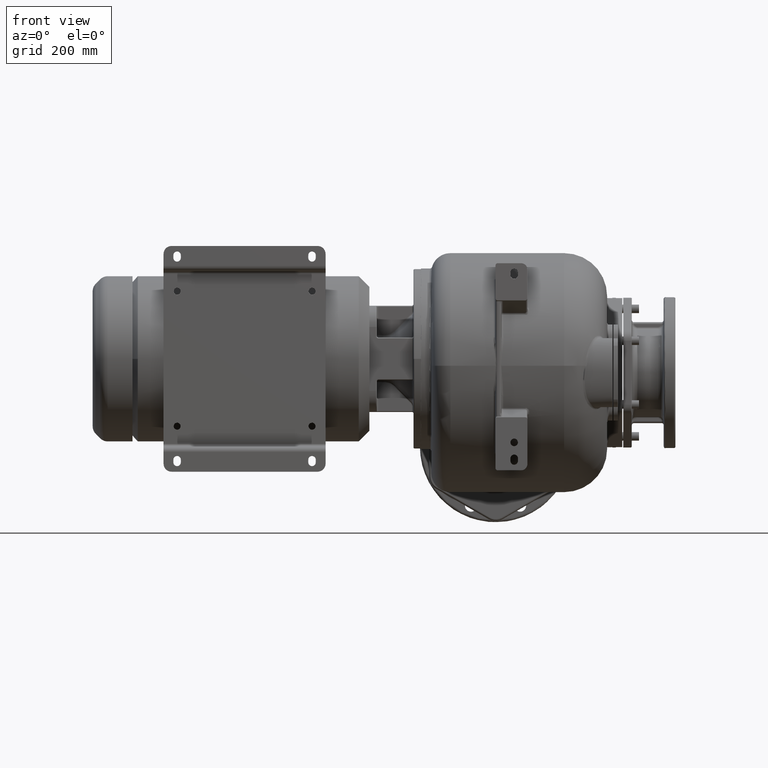
[diagram: clean part render]
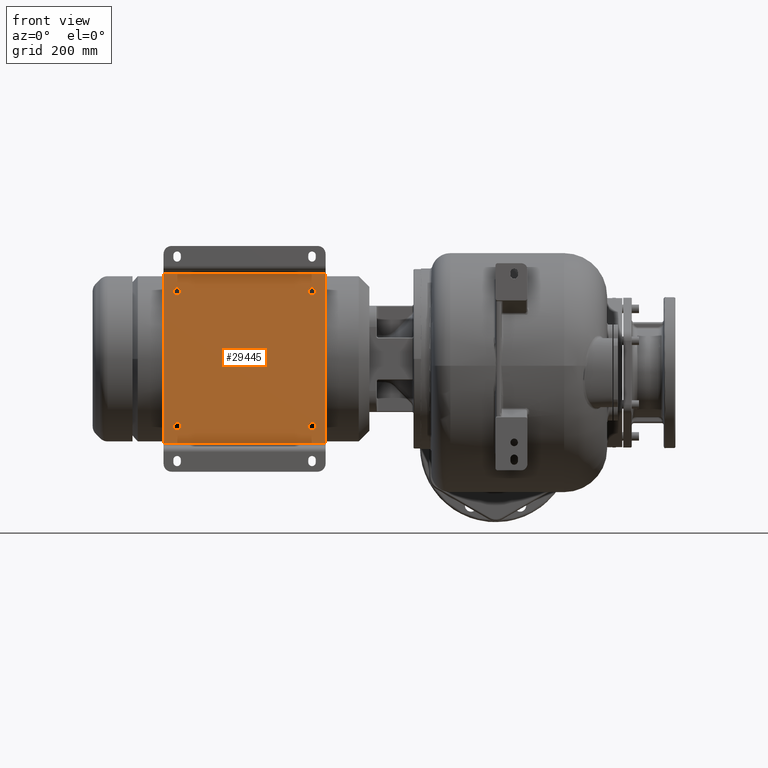
[diagram: same view with one face highlighted and labeled with its STEP entity id]
A machine part, front view. The second image highlights one B-rep face of the part: STEP entity #29445.
In plain terms, the highlighted planar face has unit normal (0, 1, 0).
Its self-contained STEP definition (entity closure, byte-faithful):
#11257=DIRECTION('',(0.E0,0.E0,1.E0));
#11258=VECTOR('',#11257,3.2E2);
#11259=CARTESIAN_POINT('',(-6.6E2,6.5E1,-1.6E2));
#11260=LINE('',#11259,#11258);
#11301=DIRECTION('',(0.E0,0.E0,1.E0));
#11302=VECTOR('',#11301,3.2E2);
#11303=CARTESIAN_POINT('',(-3.55E2,6.5E1,-1.6E2));
#11304=LINE('',#11303,#11302);
#11341=DIRECTION('',(1.E0,0.E0,0.E0));
#11342=VECTOR('',#11341,3.05E2);
#11343=CARTESIAN_POINT('',(-6.6E2,6.5E1,-1.6E2));
#11344=LINE('',#11343,#11342);
#11345=CARTESIAN_POINT('',(-3.805E2,6.5E1,-1.27E2));
#11346=DIRECTION('',(0.E0,1.E0,0.E0));
#11347=DIRECTION('',(1.E0,0.E0,0.E0));
#11348=AXIS2_PLACEMENT_3D('',#11345,#11346,#11347);
#11350=CARTESIAN_POINT('',(-3.805E2,6.5E1,-1.27E2));
#11351=DIRECTION('',(0.E0,1.E0,0.E0));
#11352=DIRECTION('',(-1.E0,0.E0,0.E0));
#11353=AXIS2_PLACEMENT_3D('',#11350,#11351,#11352);
#11355=CARTESIAN_POINT('',(-3.805E2,6.5E1,1.27E2));
#11356=DIRECTION('',(0.E0,1.E0,0.E0));
#11357=DIRECTION('',(1.E0,0.E0,0.E0));
#11358=AXIS2_PLACEMENT_3D('',#11355,#11356,#11357);
#11360=CARTESIAN_POINT('',(-3.805E2,6.5E1,1.27E2));
#11361=DIRECTION('',(0.E0,1.E0,0.E0));
#11362=DIRECTION('',(-1.E0,0.E0,0.E0));
#11363=AXIS2_PLACEMENT_3D('',#11360,#11361,#11362);
#11365=CARTESIAN_POINT('',(-6.345E2,6.5E1,-1.27E2));
#11366=DIRECTION('',(0.E0,1.E0,0.E0));
#11367=DIRECTION('',(1.E0,0.E0,0.E0));
#11368=AXIS2_PLACEMENT_3D('',#11365,#11366,#11367);
#11370=CARTESIAN_POINT('',(-6.345E2,6.5E1,-1.27E2));
#11371=DIRECTION('',(0.E0,1.E0,0.E0));
#11372=DIRECTION('',(-1.E0,0.E0,0.E0));
#11373=AXIS2_PLACEMENT_3D('',#11370,#11371,#11372);
#11375=CARTESIAN_POINT('',(-6.345E2,6.5E1,1.27E2));
#11376=DIRECTION('',(0.E0,1.E0,0.E0));
#11377=DIRECTION('',(1.E0,0.E0,0.E0));
#11378=AXIS2_PLACEMENT_3D('',#11375,#11376,#11377);
#11380=CARTESIAN_POINT('',(-6.345E2,6.5E1,1.27E2));
#11381=DIRECTION('',(0.E0,1.E0,0.E0));
#11382=DIRECTION('',(-1.E0,0.E0,0.E0));
#11383=AXIS2_PLACEMENT_3D('',#11380,#11381,#11382);
#11385=DIRECTION('',(1.E0,0.E0,0.E0));
#11386=VECTOR('',#11385,3.05E2);
#11387=CARTESIAN_POINT('',(-6.6E2,6.5E1,1.6E2));
#11388=LINE('',#11387,#11386);
#17370=CARTESIAN_POINT('',(-6.6E2,6.5E1,-1.6E2));
#17371=VERTEX_POINT('',#17370);
#17372=CARTESIAN_POINT('',(-6.6E2,6.5E1,1.6E2));
#17373=VERTEX_POINT('',#17372);
#17386=CARTESIAN_POINT('',(-3.55E2,6.5E1,-1.6E2));
#17387=VERTEX_POINT('',#17386);
#17388=CARTESIAN_POINT('',(-3.55E2,6.5E1,1.6E2));
#17389=VERTEX_POINT('',#17388);
#17444=CARTESIAN_POINT('',(-6.275E2,6.5E1,1.27E2));
#17445=CARTESIAN_POINT('',(-6.415E2,6.5E1,1.27E2));
#17446=VERTEX_POINT('',#17444);
#17447=VERTEX_POINT('',#17445);
#17448=CARTESIAN_POINT('',(-6.275E2,6.5E1,-1.27E2));
#17449=CARTESIAN_POINT('',(-6.415E2,6.5E1,-1.27E2));
#17450=VERTEX_POINT('',#17448);
#17451=VERTEX_POINT('',#17449);
#17452=CARTESIAN_POINT('',(-3.735E2,6.5E1,1.27E2));
#17453=CARTESIAN_POINT('',(-3.875E2,6.5E1,1.27E2));
#17454=VERTEX_POINT('',#17452);
#17455=VERTEX_POINT('',#17453);
#17456=CARTESIAN_POINT('',(-3.735E2,6.5E1,-1.27E2));
#17457=CARTESIAN_POINT('',(-3.875E2,6.5E1,-1.27E2));
#17458=VERTEX_POINT('',#17456);
#17459=VERTEX_POINT('',#17457);
#29409=CARTESIAN_POINT('',(-6.6E2,6.5E1,-1.6E2));
#29410=DIRECTION('',(0.E0,1.E0,0.E0));
#29411=DIRECTION('',(0.E0,0.E0,1.E0));
#29412=AXIS2_PLACEMENT_3D('',#29409,#29410,#29411);
#29413=PLANE('',#29412);
#29414=ORIENTED_EDGE('',*,*,#29287,.T.);
#29416=ORIENTED_EDGE('',*,*,#29415,.T.);
#29417=ORIENTED_EDGE('',*,*,#29346,.F.);
#29418=ORIENTED_EDGE('',*,*,#29401,.F.);
#29419=EDGE_LOOP('',(#29414,#29416,#29417,#29418));
#29420=FACE_OUTER_BOUND('',#29419,.F.);
#29422=ORIENTED_EDGE('',*,*,#29421,.F.);
#29424=ORIENTED_EDGE('',*,*,#29423,.F.);
#29425=EDGE_LOOP('',(#29422,#29424));
#29426=FACE_BOUND('',#29425,.F.);
#29428=ORIENTED_EDGE('',*,*,#29427,.F.);
#29430=ORIENTED_EDGE('',*,*,#29429,.F.);
#29431=EDGE_LOOP('',(#29428,#29430));
#29432=FACE_BOUND('',#29431,.F.);
#29434=ORIENTED_EDGE('',*,*,#29433,.F.);
#29436=ORIENTED_EDGE('',*,*,#29435,.F.);
#29437=EDGE_LOOP('',(#29434,#29436));
#29438=FACE_BOUND('',#29437,.F.);
#29440=ORIENTED_EDGE('',*,*,#29439,.F.);
#29442=ORIENTED_EDGE('',*,*,#29441,.F.);
#29443=EDGE_LOOP('',(#29440,#29442));
#29444=FACE_BOUND('',#29443,.F.);
#29445=ADVANCED_FACE('',(#29420,#29426,#29432,#29438,#29444),#29413,.F.);
#11349=CIRCLE('',#11348,7.E0);
#11354=CIRCLE('',#11353,7.E0);
#11359=CIRCLE('',#11358,7.E0);
#11364=CIRCLE('',#11363,7.E0);
#11369=CIRCLE('',#11368,7.E0);
#11374=CIRCLE('',#11373,7.E0);
#11379=CIRCLE('',#11378,7.E0);
#11384=CIRCLE('',#11383,7.E0);
#29287=EDGE_CURVE('',#17371,#17373,#11260,.T.);
#29346=EDGE_CURVE('',#17387,#17389,#11304,.T.);
#29401=EDGE_CURVE('',#17371,#17387,#11344,.T.);
#29415=EDGE_CURVE('',#17373,#17389,#11388,.T.);
#29421=EDGE_CURVE('',#17458,#17459,#11349,.T.);
#29423=EDGE_CURVE('',#17459,#17458,#11354,.T.);
#29427=EDGE_CURVE('',#17454,#17455,#11359,.T.);
#29429=EDGE_CURVE('',#17455,#17454,#11364,.T.);
#29433=EDGE_CURVE('',#17450,#17451,#11369,.T.);
#29435=EDGE_CURVE('',#17451,#17450,#11374,.T.);
#29439=EDGE_CURVE('',#17446,#17447,#11379,.T.);
#29441=EDGE_CURVE('',#17447,#17446,#11384,.T.);